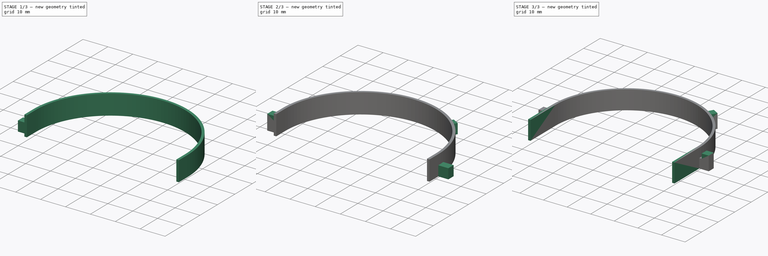
[diagram: build sequence overview — one tinted view per stage of 3, left to right]
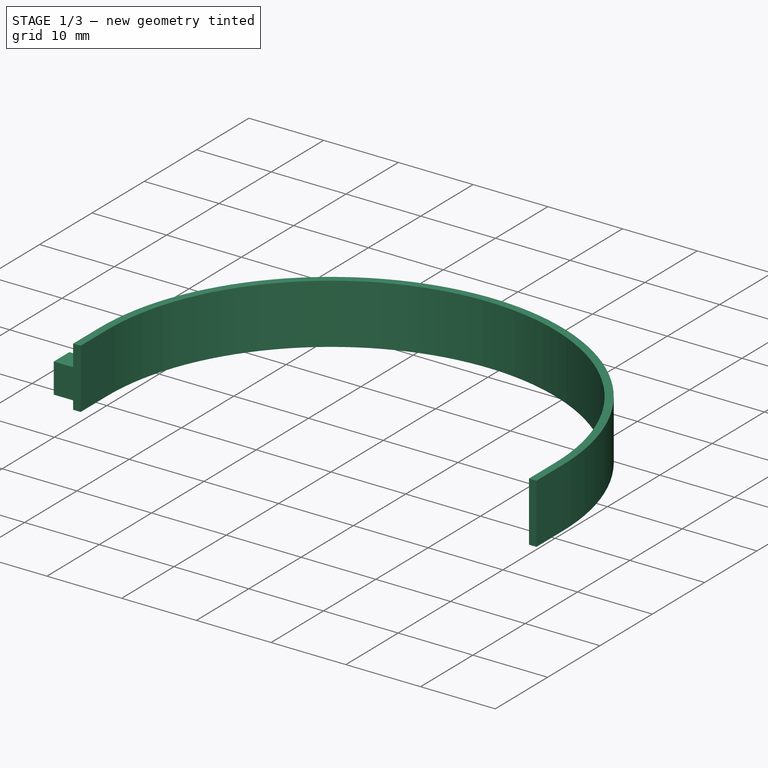
[diagram: stage 1 of 3 — iso view after this stage's code; geometry added in this stage tinted green]
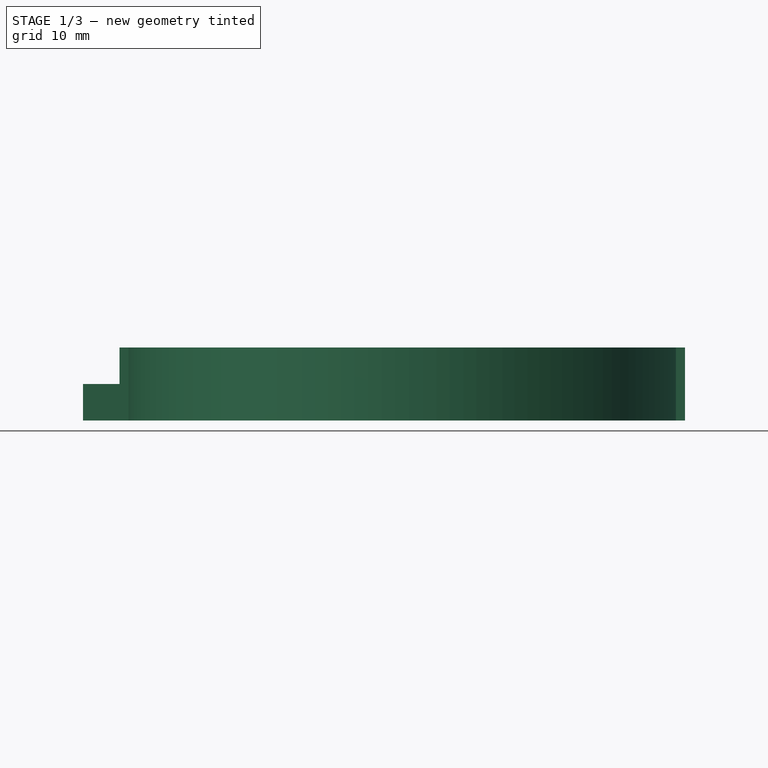
[diagram: stage 1 of 3 — front view after this stage's code; geometry added in this stage tinted green]
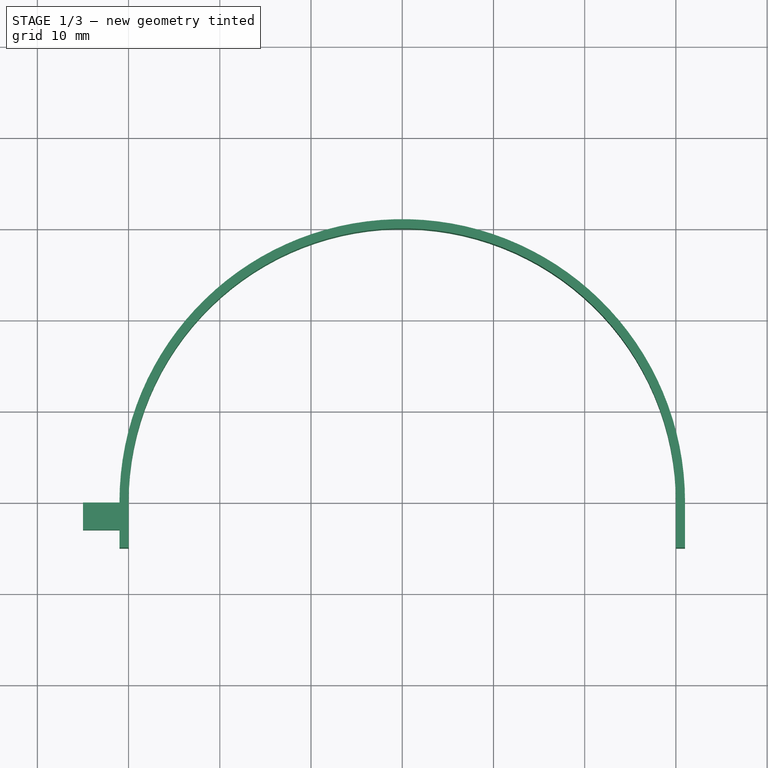
[diagram: stage 1 of 3 — top view after this stage's code; geometry added in this stage tinted green]
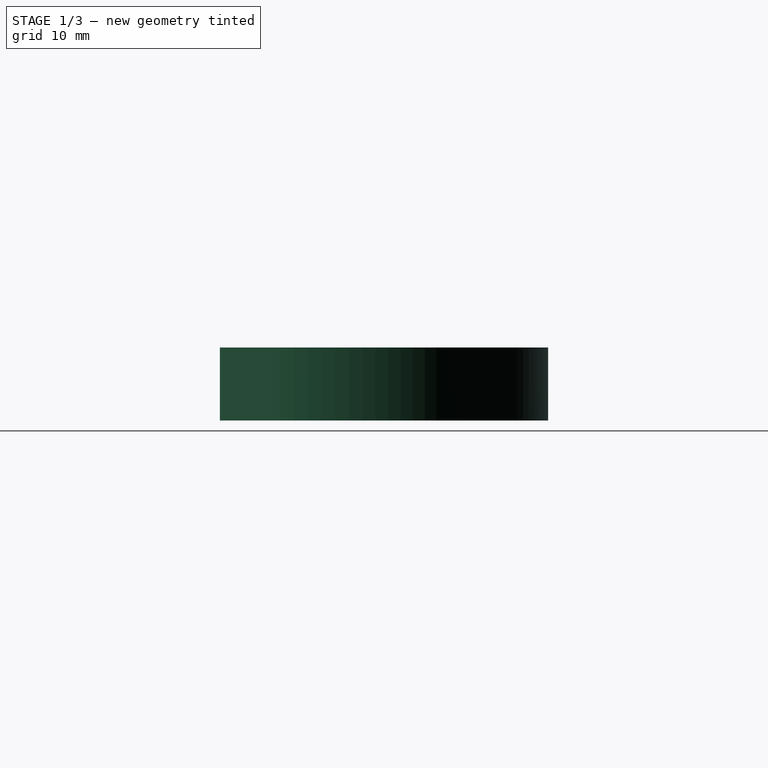
[diagram: stage 1 of 3 — right view after this stage's code; geometry added in this stage tinted green]
FCSTD DOCUMENT  (FreeCAD 0.18.3R)
Label: visera_muñeca
License: All rights reserved
LicenseURL: http://en.wikipedia.org/wiki/All_rights_reserved
objects: Sketcher::SketchObject×5, PartDesign::Pad×4, PartDesign::Body×2, PartDesign::PolarPattern×2
note: 17 computed .brp shape members not serialized (recipe doc carries the construction recipe); baked Part::Feature solids carry a one-line shape summary decoded from their .brp

FEATURE [Sketcher::SketchObject] Sketch001
  ExternalGeometry = -> [Pad]
  MapMode = 5
  Placement = pos=(-31,0,0) rot=(0.57735,-0.57735,-0.57735;2.0944rad)
  Support = -> [Pad]
  sketch-geometry (1):
    g0: Circle CenterX=10 CenterY=4 CenterZ=0 NormalX=0 NormalY=0 NormalZ=1 AngleXU=0 Radius=1.5
  constraints (3):
    c: Radius(g0) = 1.5
    c: DistanceY(g-3,g0) = 4
    c: DistanceX(g0,g-3) = 5
FEATURE [PartDesign::Body] Body
  Group = -> [Sketch,Pad,Sketch001]
  Origin = -> Origin
  Tip = -> Pad
FEATURE [Sketcher::SketchObject] Sketch002
  MapMode = 5
  Support = -> [XY_Plane001]
  sketch-geometry (8):
    g0: ArcOfCircle CenterX=0 CenterY=0 CenterZ=0 NormalX=0 NormalY=0 NormalZ=1 AngleXU=0 Radius=30 StartAngle=0 EndAngle=3.14159
    g1: LineSegment StartX=-30 StartY=3.7e-15 StartZ=0 EndX=-30 EndY=-5 EndZ=0
    g2: LineSegment StartX=-30 StartY=-5 StartZ=0 EndX=-31 EndY=-5 EndZ=0
    g3: LineSegment StartX=-31 StartY=-5 StartZ=0 EndX=-31 EndY=3.6e-15 EndZ=0
    g4: LineSegment StartX=30 StartY=0 StartZ=0 EndX=30 EndY=-5 EndZ=0
    g5: LineSegment StartX=30 StartY=-5 StartZ=0 EndX=31 EndY=-5 EndZ=0
    g6: LineSegment StartX=31 StartY=-5 StartZ=0 EndX=31 EndY=0 EndZ=0
    g7: ArcOfCircle CenterX=0 CenterY=0 CenterZ=0 NormalX=0 NormalY=0 NormalZ=1 AngleXU=0 Radius=31 StartAngle=0 EndAngle=3.14159
  constraints (22):
    c: Coincident(g0,g-1)
    c: PointOnObject(g0,g-1)
    c: PointOnObject(g0,g-1)
    c: Radius(g0) = 30
    c: Tangent(g0,g1) = -1.5708
    c: Coincident(g1,g2)
    c: Horizontal(g2)
    c: Coincident(g2,g3)
    c: Vertical(g3)
    c: Tangent(g0,g4) = 1.5708
    c: Coincident(g4,g5)
    c: Horizontal(g5)
    c: Coincident(g5,g6)
    c: Vertical(g6)
    c: DistanceY(g1,g1) = 5
    c: DistanceX(g2,g2) = 1
    c: Equal(g1,g3)
    c: Equal(g1,g4)
    c: Equal(g1,g6)
    c: Coincident(g7,g0)
    c: Coincident(g7,g3)
    c: Coincident(g7,g6)
FEATURE [PartDesign::Pad] Pad001
  Length = 8
  Length2 = 100
  Profile = -> Sketch002
  Refine = true
  Type = 0
FEATURE [Sketcher::SketchObject] Sketch003
  MapMode = 5
  Placement = pos=(-31,0,0) rot=(0.57735,-0.57735,-0.57735;2.0944rad)
  Support = -> [Pad001]
  sketch-geometry (4):
    g0: LineSegment StartX=0 StartY=4 StartZ=0 EndX=3 EndY=4 EndZ=0
    g1: LineSegment StartX=3 StartY=4 StartZ=0 EndX=3 EndY=0 EndZ=0
    g2: LineSegment StartX=3 StartY=0 StartZ=0 EndX=0 EndY=0 EndZ=0
    g3: LineSegment StartX=0 StartY=0 StartZ=0 EndX=0 EndY=4 EndZ=0
  constraints (12):
    c: Coincident(g0,g1)
    c: Coincident(g1,g2)
    c: Coincident(g2,g3)
    c: Coincident(g3,g0)
    c: Horizontal(g0)
    c: Horizontal(g2)
    c: Vertical(g1)
    c: Vertical(g3)
    c: PointOnObject(g0,g-2)
    c: PointOnObject(g1,g-1)
    c: DistanceY(g3,g3) = 4
    c: DistanceX(g0,g0) = 3
FEATURE [PartDesign::Pad] Pad002  label="agarre"
  BaseFeature = -> Pad001
  Length = 4
  Length2 = 1
  Profile = -> Sketch003
  Refine = true
  Type = 4
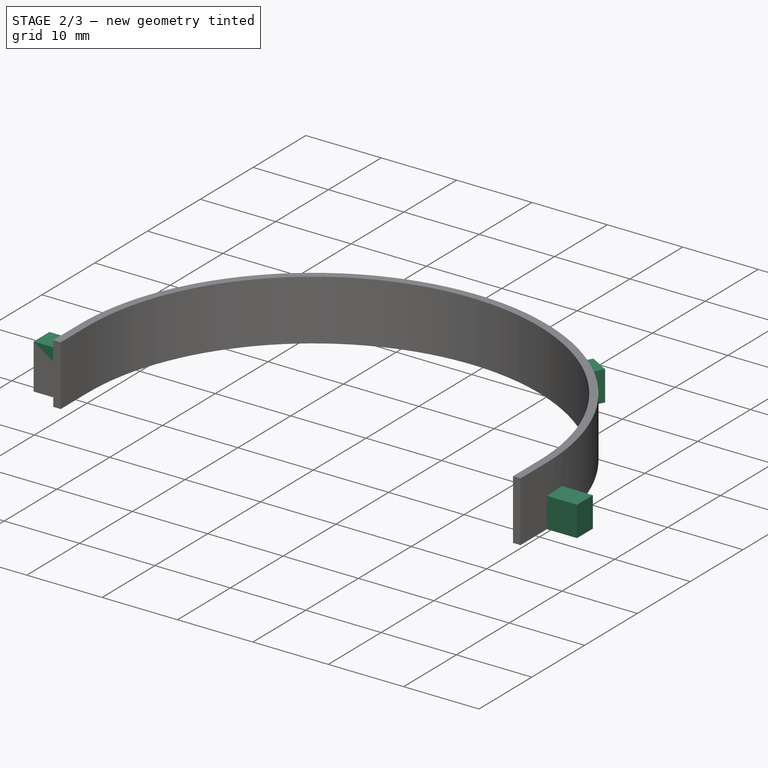
[diagram: stage 2 of 3 — iso view after this stage's code; geometry added in this stage tinted green]
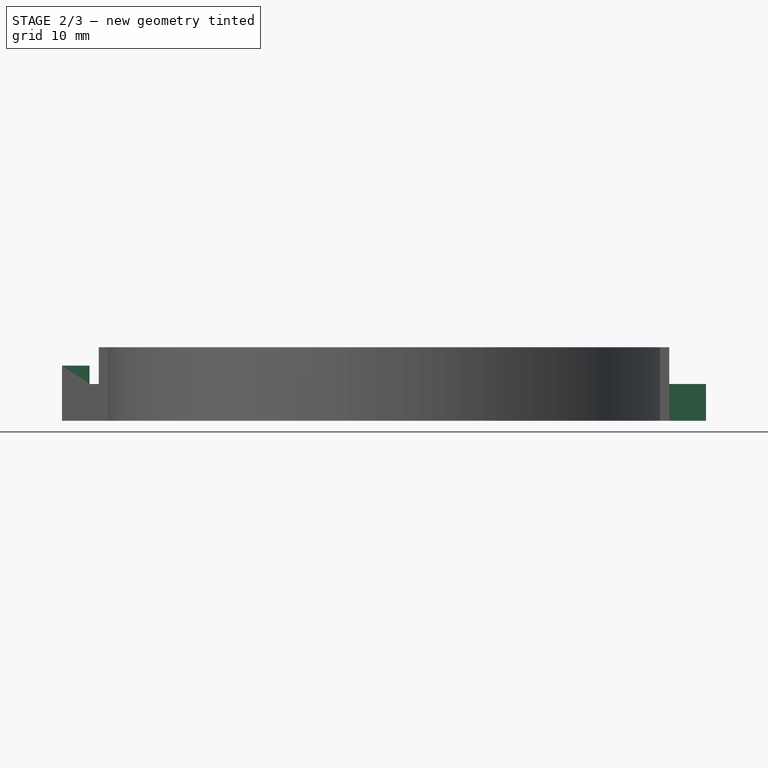
[diagram: stage 2 of 3 — front view after this stage's code; geometry added in this stage tinted green]
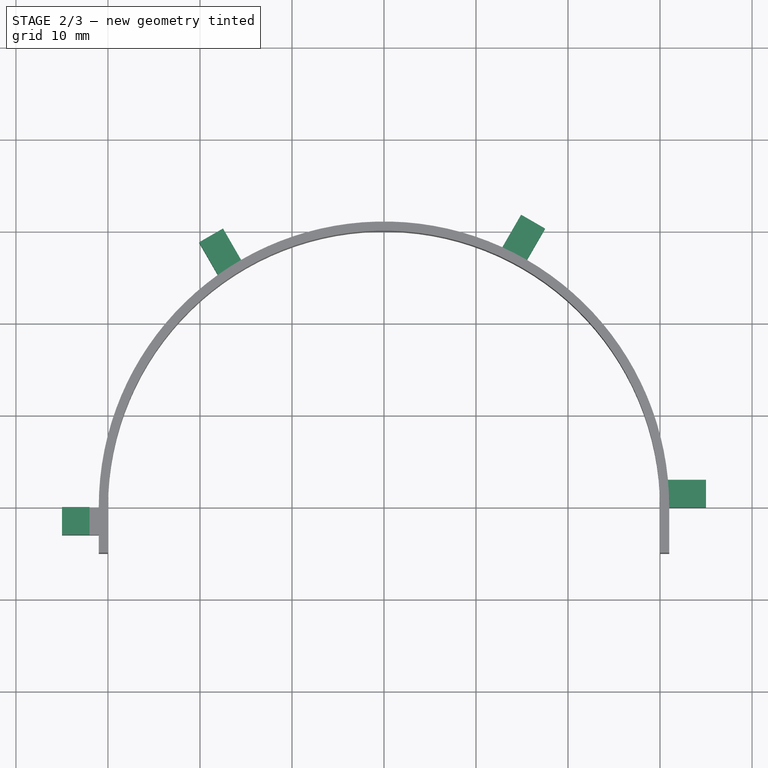
[diagram: stage 2 of 3 — top view after this stage's code; geometry added in this stage tinted green]
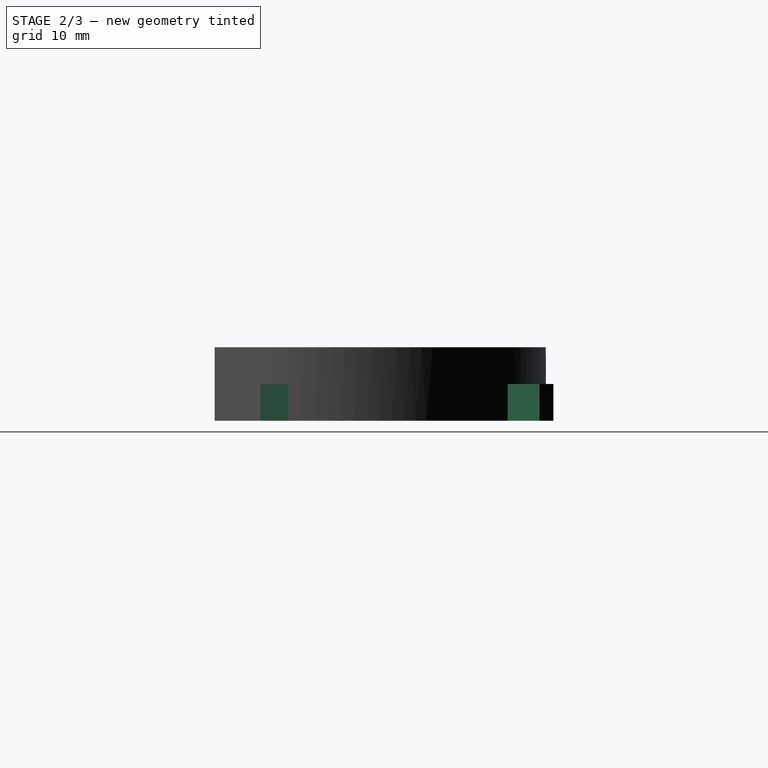
[diagram: stage 2 of 3 — right view after this stage's code; geometry added in this stage tinted green]
FEATURE [Sketcher::SketchObject] Sketch004
  ExternalGeometry = -> [Pad002]
  MapMode = 5
  Placement = pos=(0,0,4) rot=(0,0,1;0rad)
  Support = -> [Pad002]
  sketch-geometry (4):
    g0: LineSegment StartX=-35 StartY=0 StartZ=0 EndX=-32 EndY=0 EndZ=0
    g1: LineSegment StartX=-32 StartY=0 StartZ=0 EndX=-32 EndY=-3 EndZ=0
    g2: LineSegment StartX=-32 StartY=-3 StartZ=0 EndX=-35 EndY=-3 EndZ=0
    g3: LineSegment StartX=-35 StartY=-3 StartZ=0 EndX=-35 EndY=0 EndZ=0
  constraints (11):
    c: Coincident(g0,g1)
    c: Coincident(g1,g2)
    c: Coincident(g2,g3)
    c: Coincident(g3,g0)
    c: Horizontal(g0)
    c: Horizontal(g2)
    c: Vertical(g1)
    c: Vertical(g3)
    c: Coincident(g0,g-3)
    c: DistanceY(g-3,g1) = 0
    c: DistanceX(g0,g0) = 3
FEATURE [PartDesign::Pad] Pad003  label="gancho"
  BaseFeature = -> Pad002
  Length = 2
  Length2 = 100
  Profile = -> Sketch004
  Refine = true
  Type = 0
FEATURE [PartDesign::PolarPattern] PolarPattern
  Angle = 180
  Axis = -> Z_Axis001
  BaseFeature = -> Pad003
  Occurrences = 4
  Originals = -> [Pad002]
  Refine = true
  Reversed = true
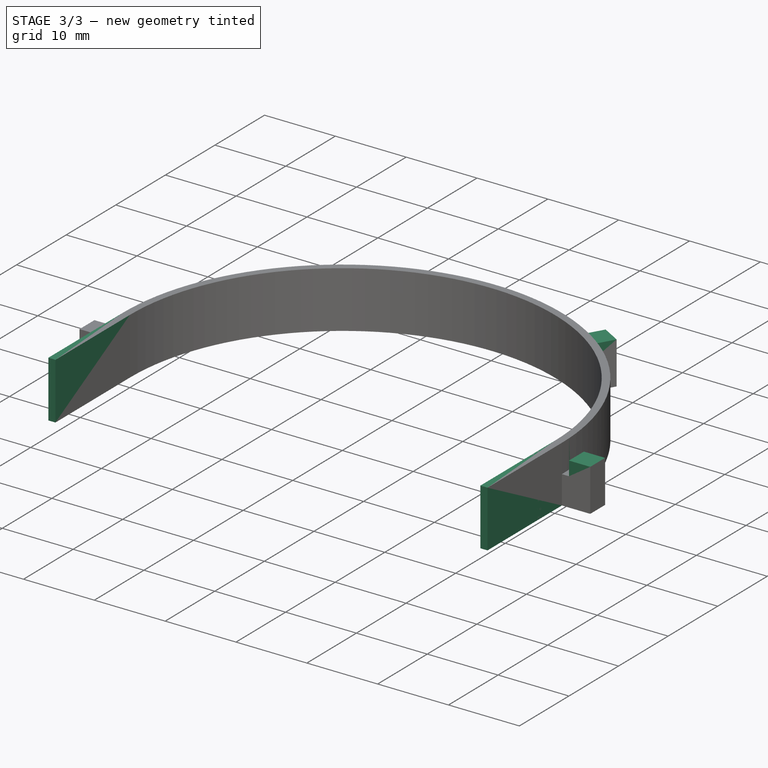
[diagram: stage 3 of 3 — iso view after this stage's code; geometry added in this stage tinted green]
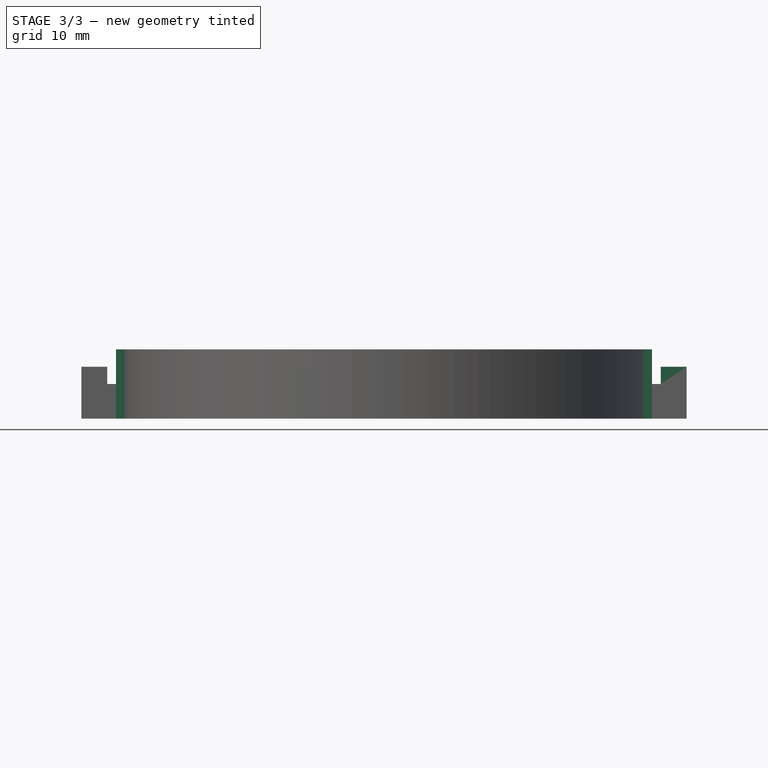
[diagram: stage 3 of 3 — front view after this stage's code; geometry added in this stage tinted green]
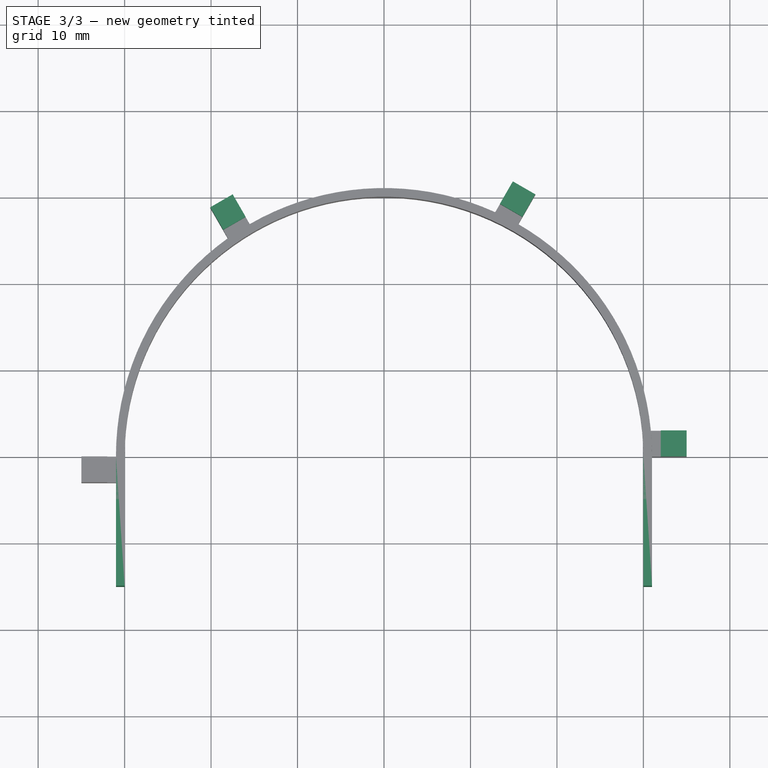
[diagram: stage 3 of 3 — top view after this stage's code; geometry added in this stage tinted green]
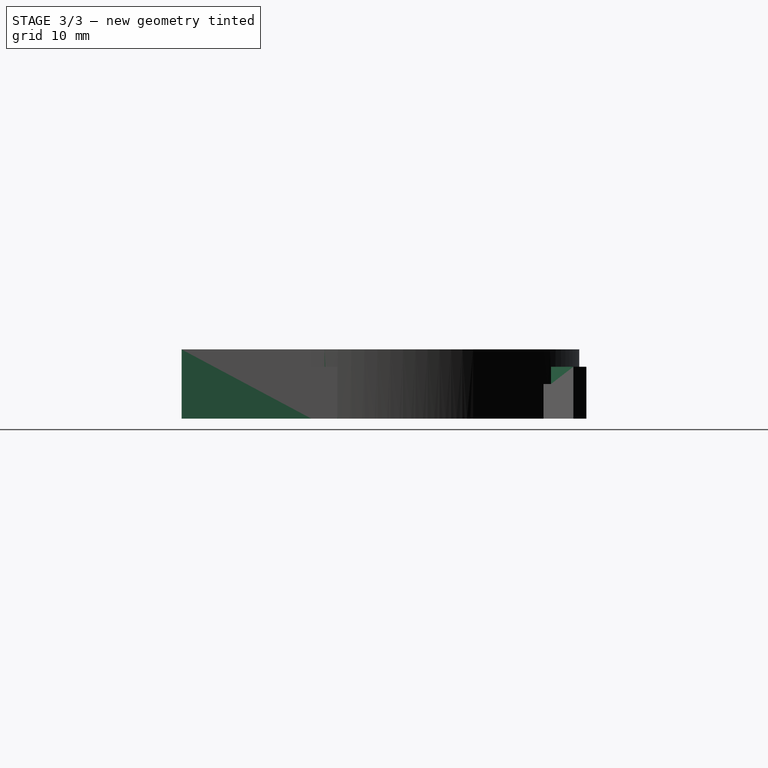
[diagram: stage 3 of 3 — right view after this stage's code; geometry added in this stage tinted green]
FEATURE [Sketcher::SketchObject] Sketch
  MapMode = 5
  Support = -> [XY_Plane]
  sketch-geometry (8):
    g0: ArcOfCircle CenterX=0 CenterY=0 CenterZ=0 NormalX=0 NormalY=0 NormalZ=1 AngleXU=0 Radius=30 StartAngle=0 EndAngle=3.14159
    g1: LineSegment StartX=-30 StartY=3.7e-15 StartZ=0 EndX=-30 EndY=-15 EndZ=0
    g2: LineSegment StartX=-30 StartY=-15 StartZ=0 EndX=-31 EndY=-15 EndZ=0
    g3: LineSegment StartX=-31 StartY=-15 StartZ=0 EndX=-31 EndY=3.6e-15 EndZ=0
    g4: LineSegment StartX=30 StartY=0 StartZ=0 EndX=30 EndY=-15 EndZ=0
    g5: LineSegment StartX=30 StartY=-15 StartZ=0 EndX=31 EndY=-15 EndZ=0
    g6: LineSegment StartX=31 StartY=-15 StartZ=0 EndX=31 EndY=0 EndZ=0
    g7: ArcOfCircle CenterX=0 CenterY=0 CenterZ=0 NormalX=0 NormalY=0 NormalZ=1 AngleXU=0 Radius=31 StartAngle=0 EndAngle=3.14159
  constraints (22):
    c: Coincident(g0,g-1)
    c: PointOnObject(g0,g-1)
    c: PointOnObject(g0,g-1)
    c: Radius(g0) = 30
    c: Tangent(g0,g1) = -1.5708
    c: Coincident(g1,g2)
    c: Horizontal(g2)
    c: Coincident(g2,g3)
    c: Vertical(g3)
    c: Tangent(g0,g4) = 1.5708
    c: Coincident(g4,g5)
    c: Horizontal(g5)
    c: Coincident(g5,g6)
    c: Vertical(g6)
    c: DistanceY(g1,g1) = 15
    c: DistanceX(g2,g2) = 1
    c: Equal(g1,g3)
    c: Equal(g1,g4)
    c: Equal(g1,g6)
    c: Coincident(g7,g0)
    c: Coincident(g7,g3)
    c: Coincident(g7,g6)
FEATURE [PartDesign::Pad] Pad
  Length = 8
  Length2 = 100
  Profile = -> Sketch
  Refine = true
  Type = 0
FEATURE [PartDesign::PolarPattern] PolarPattern001
  Angle = 180
  Axis = -> Z_Axis001
  BaseFeature = -> PolarPattern
  Occurrences = 4
  Originals = -> [Pad003]
  Refine = true
  Reversed = true
FEATURE [PartDesign::Body] Body001
  Group = -> [Sketch002,Pad001,Sketch003,Pad002,Sketch004,Pad003,PolarPattern,PolarPattern001]
  Origin = -> Origin001
  Placement = pos=(0,4,0) rot=(0,0,1;0rad)
  Tip = -> PolarPattern001
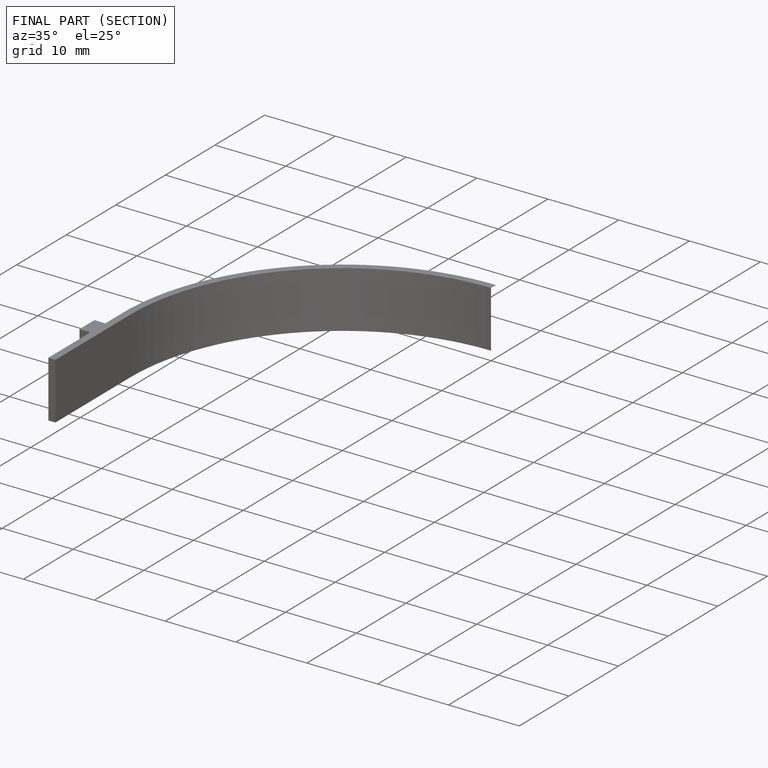
[diagram: finished part — half-section view (interior)]
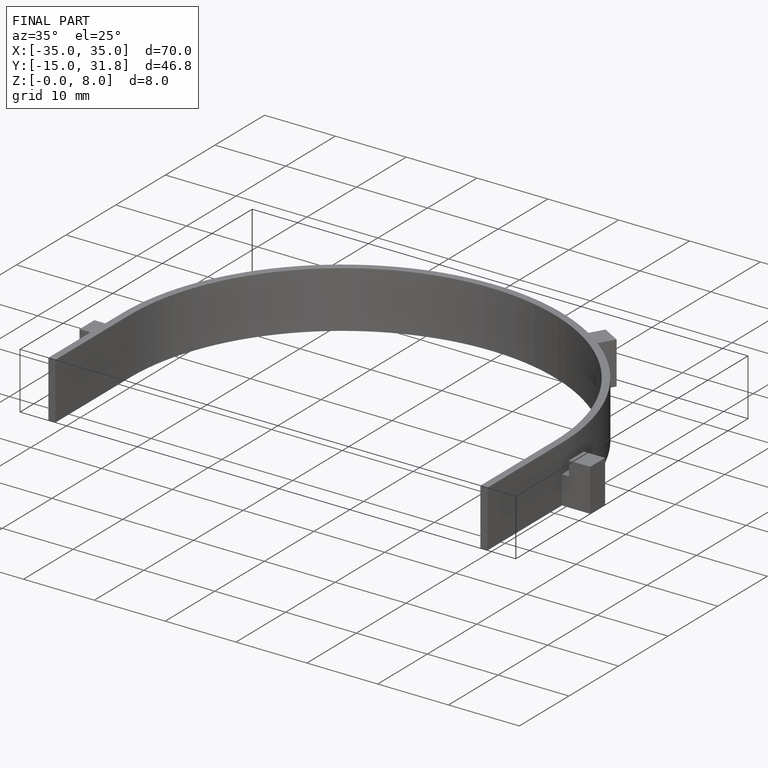
[diagram: finished part — iso view with bounding-box wireframe]
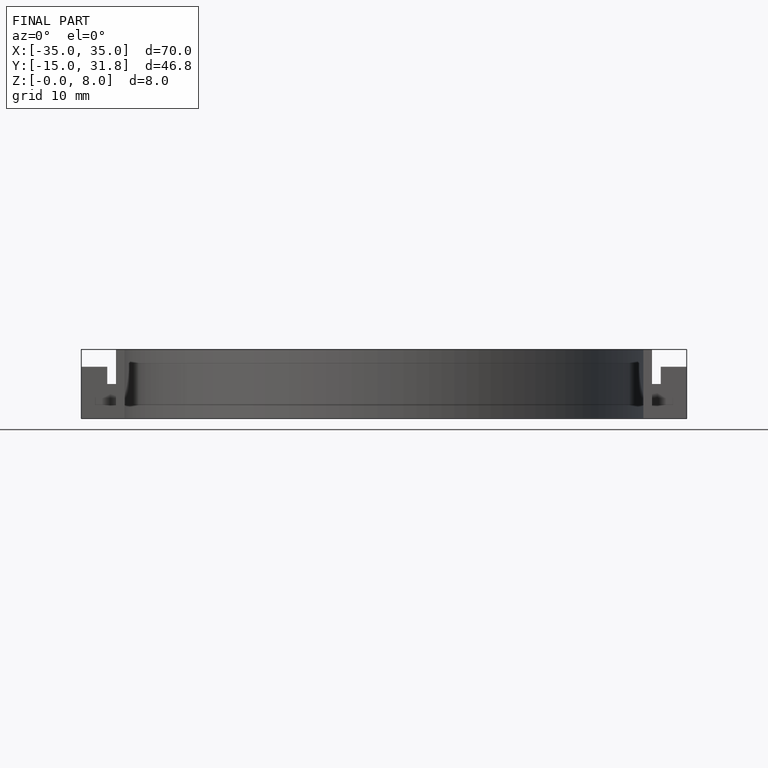
[diagram: finished part — front view with bounding-box wireframe]
